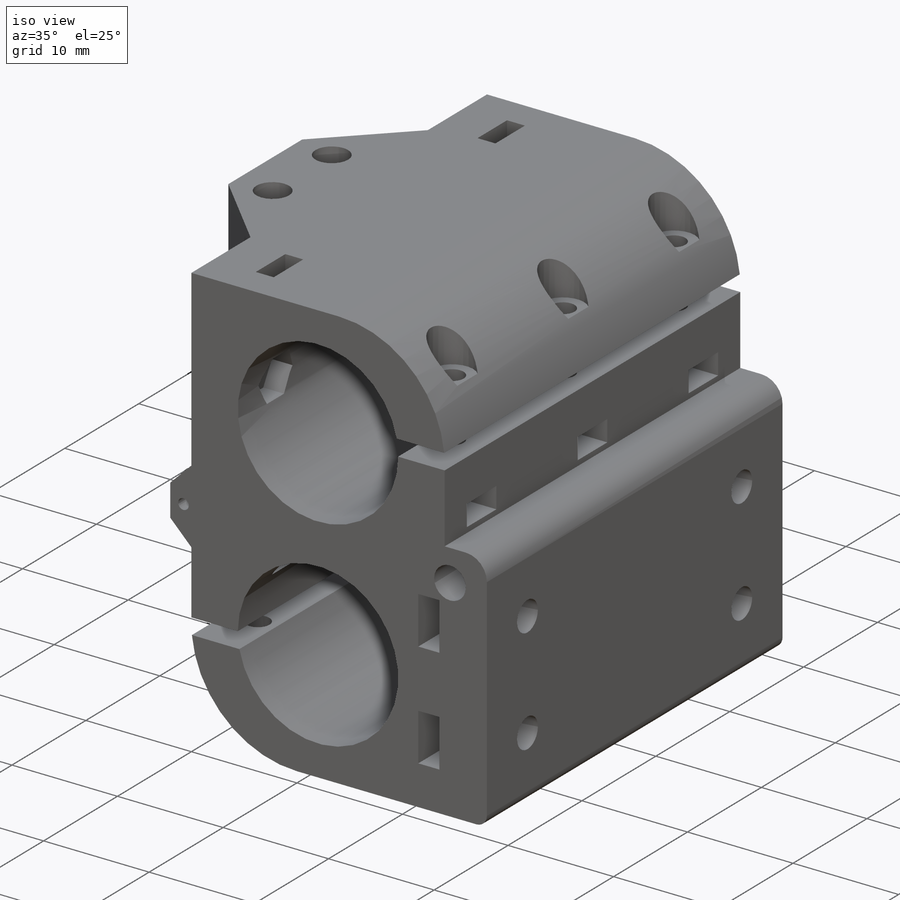
[diagram: iso view]
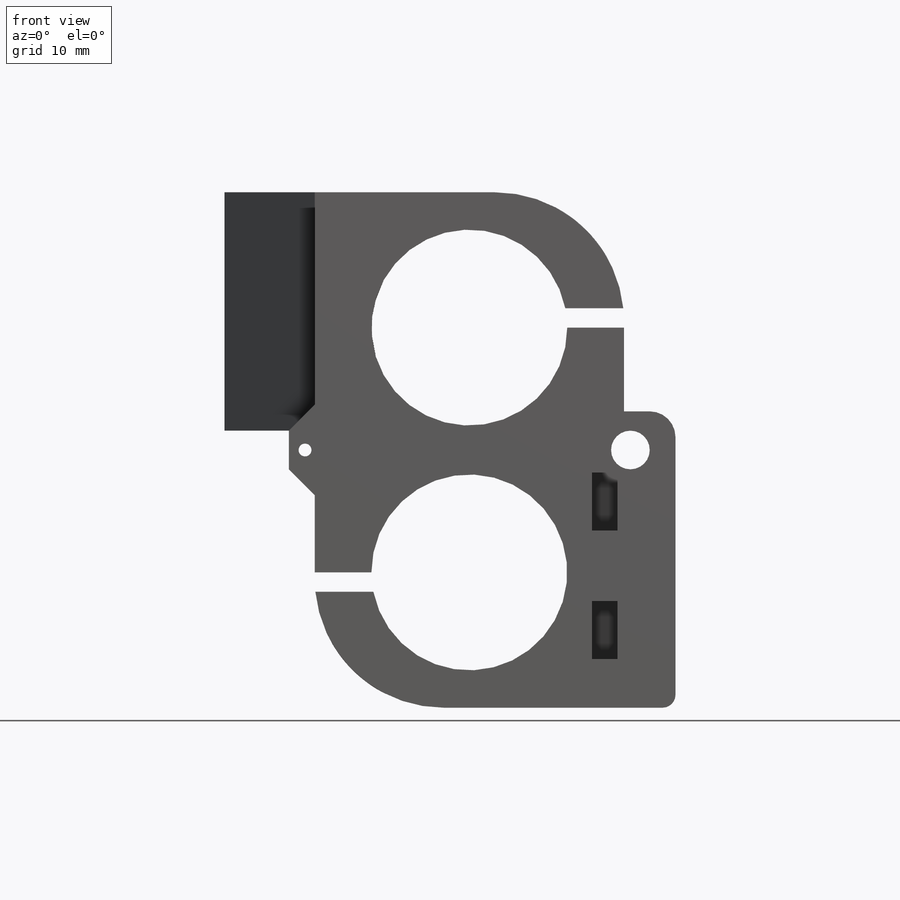
[diagram: front view]
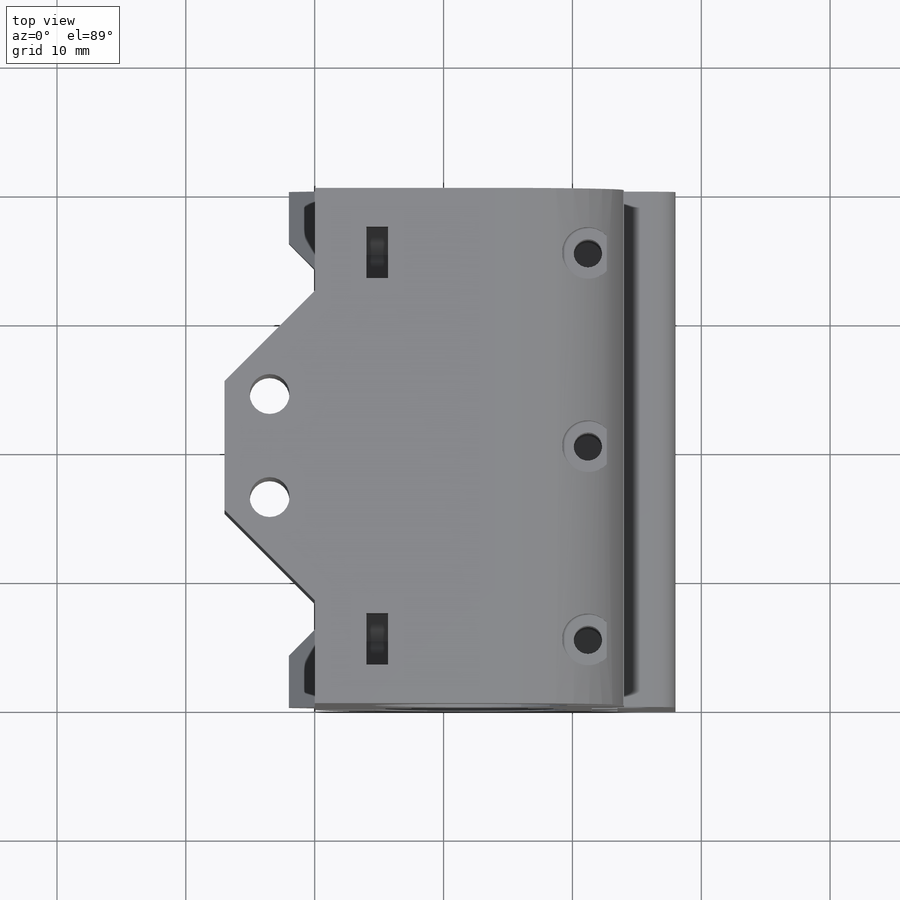
[diagram: top view]
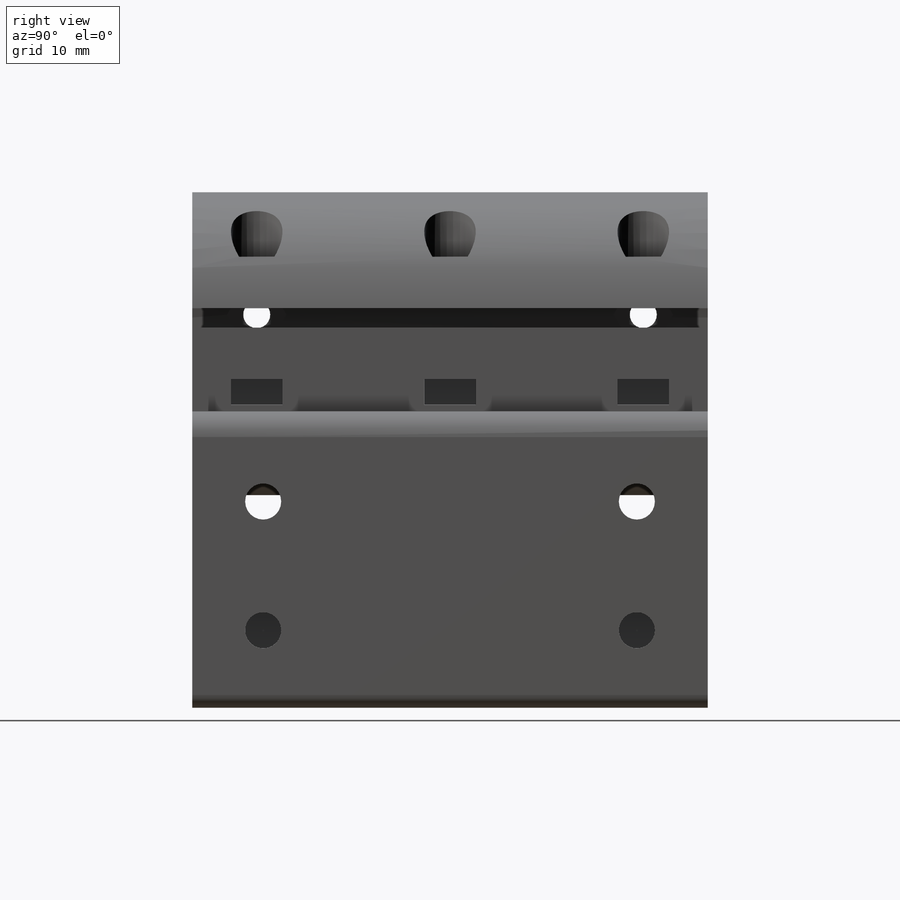
[diagram: right view]
SOLIDWORKS PART (.sldprt)
format: sldprt  version: not decoded by parser v0  size: 939,008 bytes
history: native  units: mm
features: sketch x25, cut_extrude x20, chamfer x6, extrude x4, fillet x2, material x1 (+11 scaffold rows collapsed)
feature tree (69):
  scaffold x11  (default folders/planes/origin — collapsed)
  material  "Material <not specified>"
  sketch  "Sketch1"  dims[c1.D1=15.2mm c1.D7=10.0mm c1.D10=3.0mm c1.D11=6.0mm c1.D2=19.0mm c1.D3=40.0mm c1.D4=10.5mm c1.D5=24.0mm c1.D6=12.0mm c1.D8=8.0mm c1.D9=8.0mm c2.D8=2.0mm c2.D2=3.0mm c2.D4=5.7mm c3.D8=1.2mm c3.D9=21.8mm c3.D12=19.0mm c3.D13=5.0mm c3.D14=7.0mm c3.D11=0.75mm c3.D15=7.0mm c4.D11=17.0mm c4.D15=10.0mm c5.D11=10.0mm c5.D15=20.0mm c5.D16=17.0mm c5.D17=10.0mm c6.D11=16.0mm c6.D15=7.0mm c6.D16=24.0mm c6.D17=17.0mm c6.D18=12.5mm c6.D19=3.0mm c6.D2=10.0mm c6.D4=20.0mm c7.D2=24.0mm c7.D4=10.0mm c7.D7=10.0mm c7.D8=7.0mm c7.D13=13.0mm]
  extrude  "Boss-Extrude1"  Depth=40mm
  sketch  "Sketch7"  dims[c1.D1=2.2mm c1.D2=2.2mm c1.D3=2.8mm c2.D2=5.0mm c2.D4=5.0mm c2.D5=15.0mm c2.D6=15.0mm c2.D3=7.2mm]
  cut_extrude  "Cut-Extrude2"  Depth=20mm
  sketch  "Sketch10"  dims[D1=4.0mm]
  cut_extrude  "Cut-Extrude5"  Depth=5mm
  sketch  "Sketch11"  dims[D1=3.0mm D2=3.0mm D3=4.0mm D4=4.0mm D5=4.0mm D6=4.0mm]
  fillet  "Fillet1"  Radius=2mm
  sketch  "Sketch18"  dims[c1.D1=2.8mm c1.D2=10.0mm c1.D3=5.0mm c1.D4=29.0mm c1.D5=5.5mm c2.D3=10.0mm c2.D6=10.0mm c2.D7=5.0mm c2.D1=5.0mm]
  cut_extrude  "Cut-Extrude10"  [1 undecoded]
  sketch  "Sketch19"  dims[D1=4.5mm D2=2.0mm D3=4.5mm D4=3.75mm D5=10.0mm]
  cut_extrude  "Cut-Extrude11"  Depth=8.7mm
  sketch  "Sketch20"  dims[D1=4.5mm D2=2.0mm D3=3.75mm D4=10.0mm D5=4.5mm]
  cut_extrude  "Cut-Extrude12"  Depth=8.7mm
  sketch  "Sketch21"  dims[D5=2.2mm D1=7.2mm D2=5.0mm D3=5.0mm D4=15.0mm]
  cut_extrude  "Cut-Extrude13"  Depth=20mm
  sketch  "Sketch22"  dims[D1=4.0mm]
  cut_extrude  "Cut-Extrude14"  Depth=5mm
  sketch  "Sketch23"  dims[D1=1.5mm D2=9.0mm D3=2.0mm D4=4.0mm D5=15.0mm D6=15.0mm D7=3.0mm D8=4.0mm D9=15.0mm]
  cut_extrude  "Cut-Extrude15"  [1 undecoded]
  sketch  "Sketch24"  dims[D1=2.0mm D2=1.5mm D3=15.0mm D4=9.0mm D5=3.0mm D6=4.0mm D7=4.0mm D8=3.0mm]
  cut_extrude  "Cut-Extrude16"  [1 undecoded]
  fillet  "Fillet3"  Radius=1mm
  sketch  "Sketch25"  dims[c1.D1=5.0mm c1.D2=7.0mm c1.D3=5.0mm c2.D2=17.5mm]
  extrude  "Boss-Extrude4"  Depth=2mm
  sketch  "Sketch26"  dims[D3=1.0mm D1=2.5mm D2=0.75mm]
  cut_extrude  "Cut-Extrude17"  [1 undecoded]
  chamfer  "Chamfer5"  Distance=1mm Angle=45deg
  chamfer  "Chamfer6"  Distance=1mm Angle=45deg
  sketch  "Sketch27"  dims[c1.D1=3.1mm c1.D2=3.5mm c1.D3=~9.085388mm c2.D3=90.0deg c3.D3=16.0mm c3.D4=16.0mm]
  cut_extrude  "Cut-Extrude18"  [1 undecoded]
  sketch  "Sketch28"
  cut_extrude  "Cut-Extrude19"  Depth=8mm
  sketch  "Sketch29"
  cut_extrude  "Cut-Extrude20"  Depth=8mm
  sketch  "Sketch30"  dims[D1=2.1mm D2=6.5mm D3=3.0mm D4=5.0mm D5=5.0mm D6=4.0mm D7=4.0mm]
  cut_extrude  "Cut-Extrude21"  Depth=9mm
  sketch  "Sketch31"
  extrude  "Boss-Extrude5"  Depth=2.5mm
  sketch  "Sketch32"  dims[c1.D1=4.0mm c1.D2=1.7mm c1.D3=29.0mm c1.D4=3.0mm c1.D5=14.0mm c2.D3=3.0mm c2.D5=4.0mm]
  cut_extrude  "Cut-Extrude23"  Depth=6mm
  chamfer  "Chamfer7"  Distance=1.1mm Angle=60deg
  chamfer  "Chamfer9"  Distance=7mm Angle=45deg
  sketch  "Sketch33"
  extrude  "Boss-Extrude6"  Depth=5.5mm
  sketch  "Sketch5"  dims[D2=3.2mm D1=21.8mm D3=5.0mm D4=5.0mm]
  cut_extrude  "Cut-Extrude1"  Depth=6mm
  cut_extrude  "Cut-Extrude6"  Depth=5mm
  sketch  "Sketch12"  dims[D1=9.4mm D2=14.2mm D3=15.3mm]
  cut_extrude  "Cut-Extrude7"  [1 undecoded]
  chamfer  "Chamfer2"  Distance=6mm
  chamfer  "Chamfer3"  Distance=2mm
  sketch  "Sketch13"  dims[D5=2.8mm D1=10.0mm D2=29.0mm D3=5.0mm D4=5.5mm]
  cut_extrude  "Cut-Extrude8"  Depth=14mm
  sketch  "Sketch14"  dims[D1=4.6mm]
  cut_extrude  "Cut-Extrude9"  Depth=1mm
  sketch  "Sketch17"  dims[D1=1.0mm D2=1.0mm D3=1.0mm D4=1.0mm]
decode coverage: 47 of 57 modeling features carry decoded parameters
note: ~ marks probable driven/reference dimensions
note: 6 parameter values undecoded
summary: no parameter record found for 6 features
note: suppression state not decoded; provenance and decode notes live in map.json
